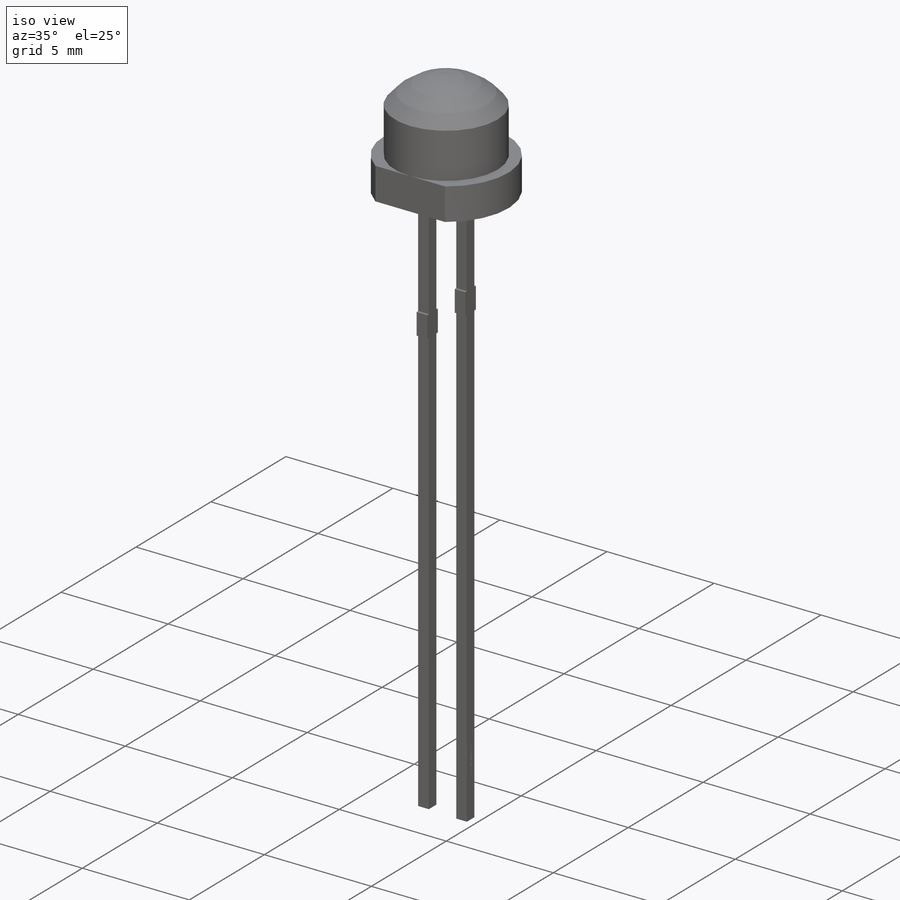
[diagram: iso view]
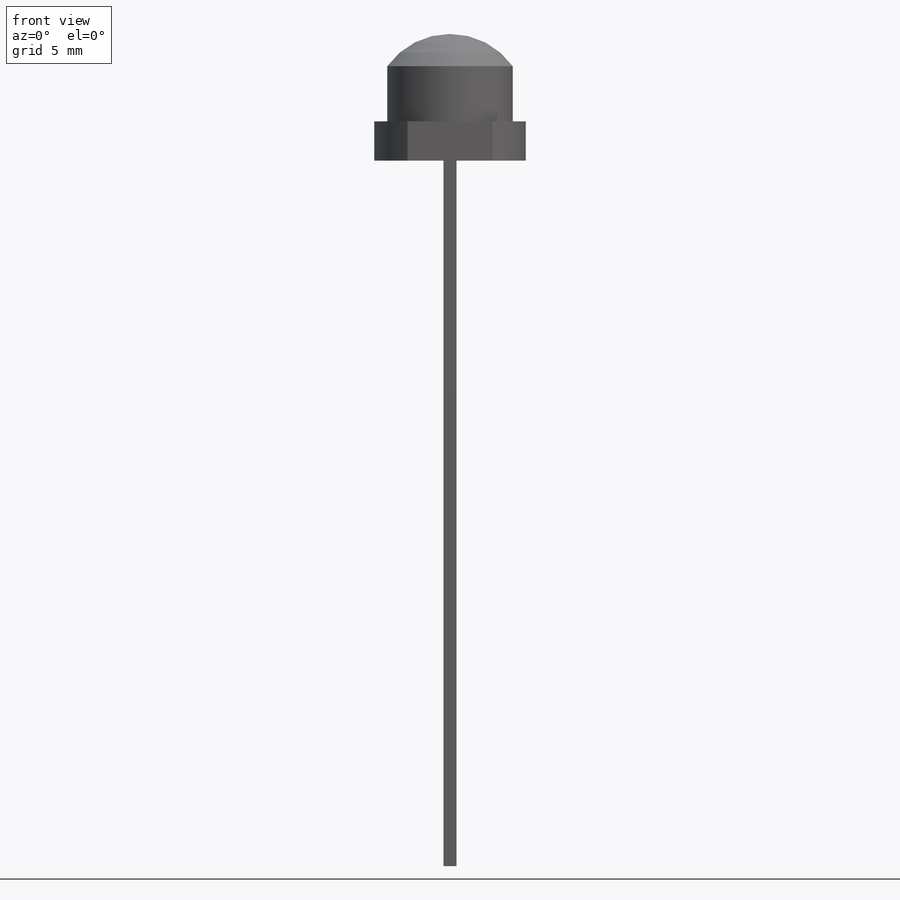
[diagram: front view]
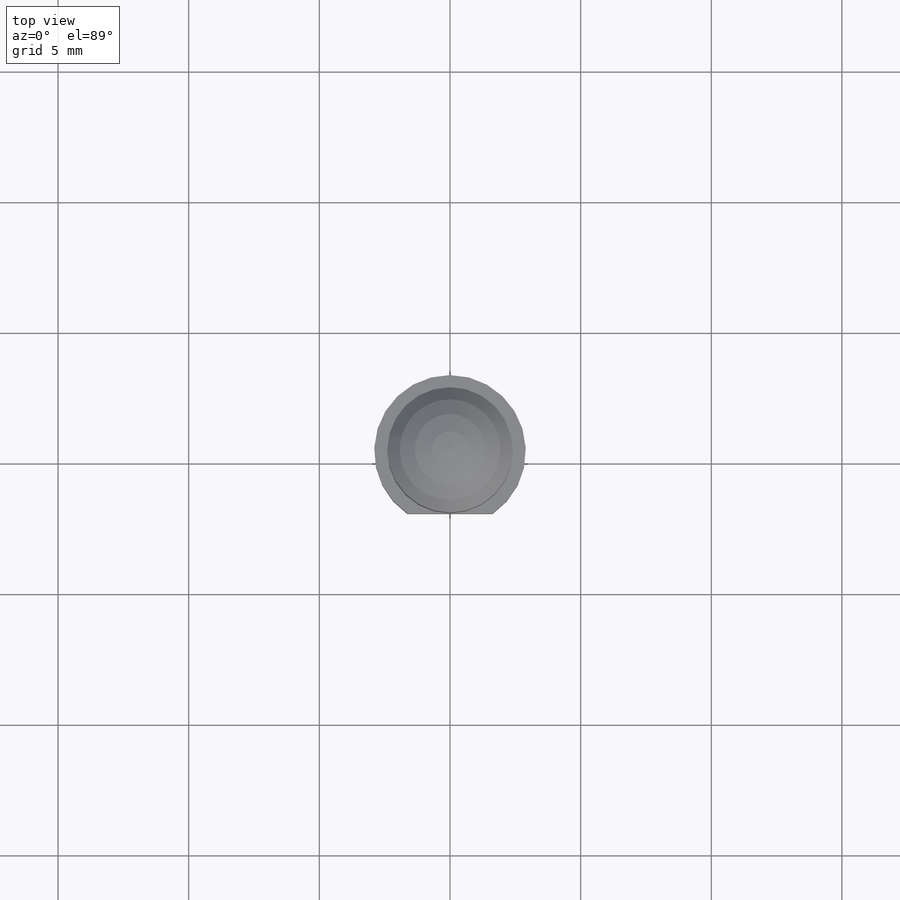
[diagram: top view]
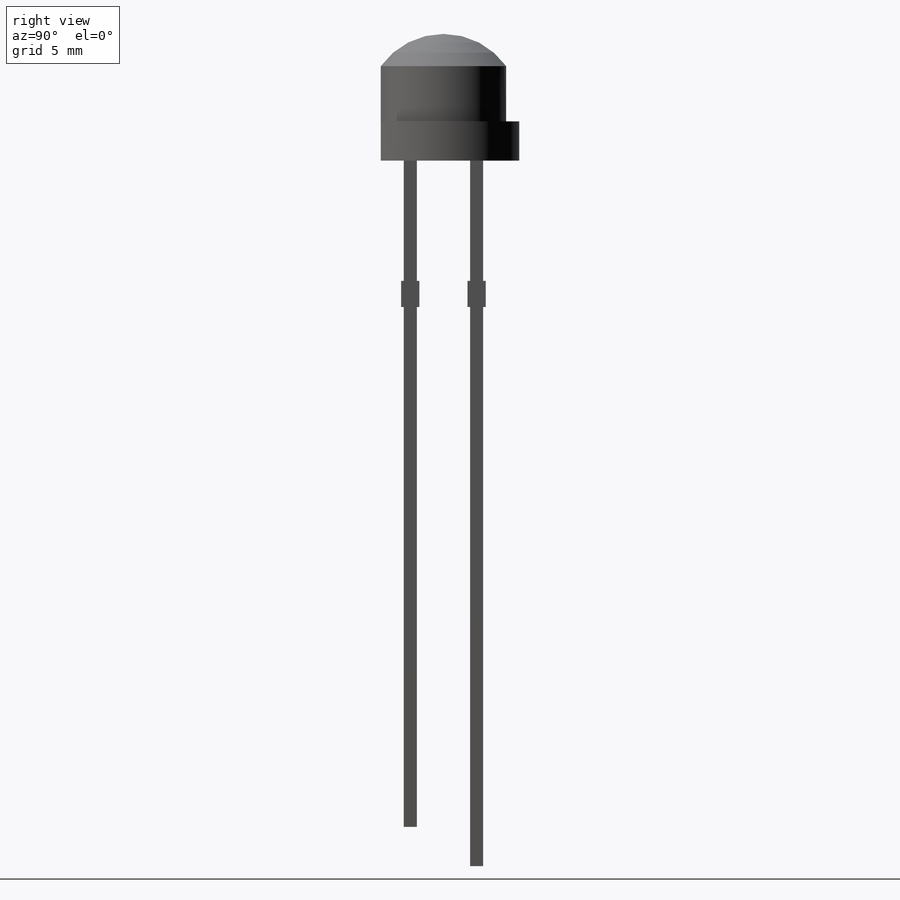
[diagram: right view]
SOLIDWORKS PART (.sldprt)
format: sldprt  version: not decoded by parser v0  size: 582,144 bytes
history: native  units: mm
features: sketch x6, extrude x3, cut_extrude x2, material x1, revolve x1 (+11 scaffold rows collapsed)
feature tree (24):
  scaffold x11  (default folders/planes/origin — collapsed)
  material  "Material <not specified>"
  sketch  "Sketch1"  dims[D1=5.0mm D2=4.85mm D3=1.5mm D4=2.9mm D5=2.4mm]
  revolve  "Revolve1"  Angle=360deg
  sketch  "Sketch3"  dims[D1=0.5mm D2=0.5mm D3=2.54mm]
  extrude  "Extrude2"  Depth=25.5mm
  extrude  "Extrude3"  [1 undecoded]
  sketch  "Sketch3<3>"  dims[D1=27.0mm]
  sketch  "Sketch4"  dims[c1.D1=~1.622049mm c2.D1=90.0deg c3.D1=0.7mm c3.D2=5.0mm c3.D3=1.0mm c4.D2=9.6mm c4.D4=~3.74431mm]
  extrude  "Extrude4"  [1 undecoded]
  sketch  "Sketch5"  dims[D1=5.0mm]
  cut_extrude  "Cut-Extrude1"  Depth=0.01mm
  cut_extrude  "Cut-Extrude2"  [1 undecoded]
  sketch  "Sketch3<4>"  dims[D1=10.0mm]
decode coverage: 9 of 12 modeling features carry decoded parameters
note: ~ marks probable driven/reference dimensions
note: 3 parameter values undecoded
summary: no parameter record found for 3 features
note: suppression state not decoded; provenance and decode notes live in map.json
